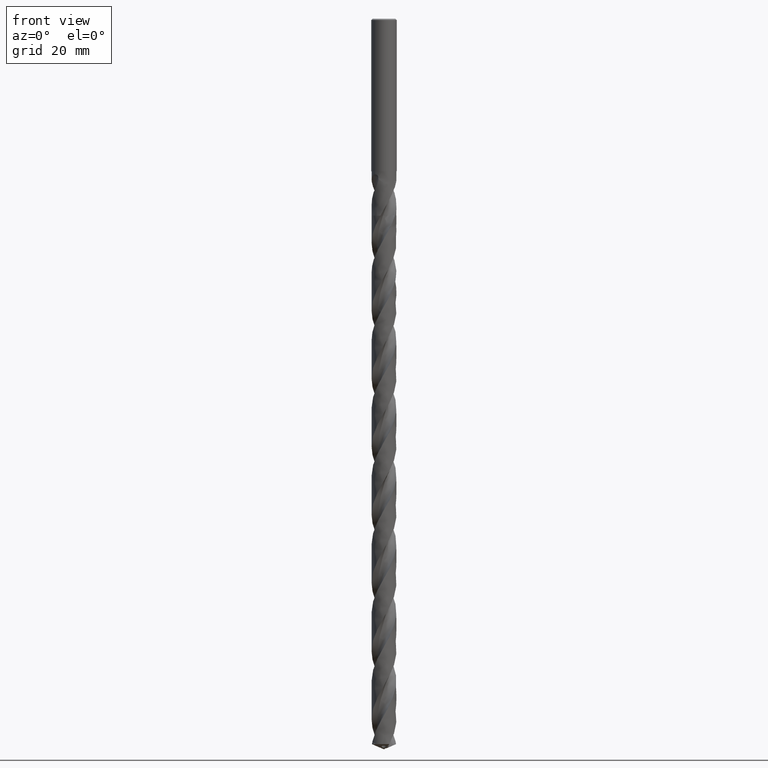
[diagram: clean part render]
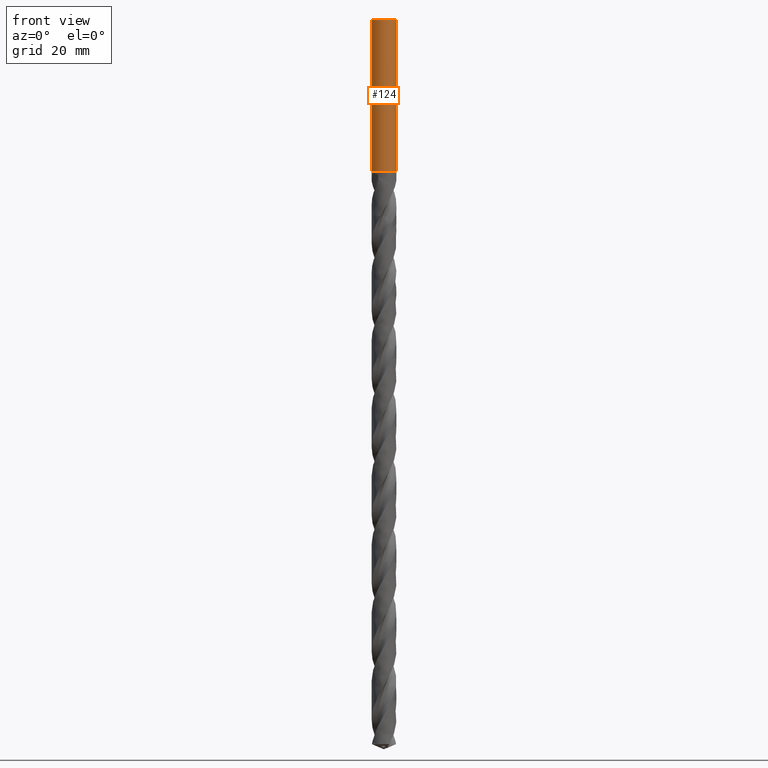
[diagram: same view with one face highlighted and labeled with its STEP entity id]
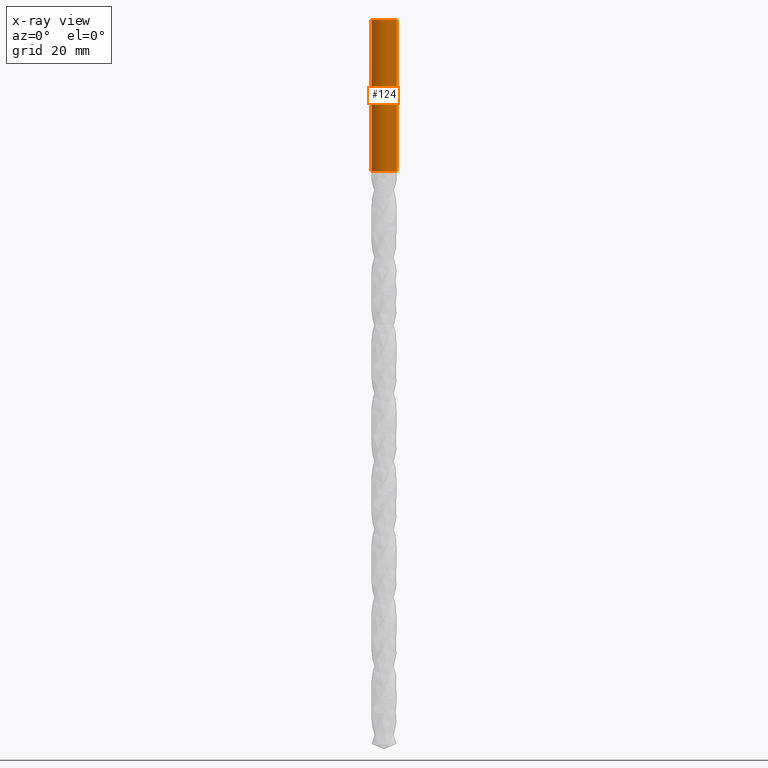
[diagram: x-ray of the same camera — body ghosted, the highlighted face saturated]
A machine part, front view. The second image highlights one B-rep face of the part: STEP entity #124.
The next image is the same camera in x-ray: the body ghosted, the highlighted face saturated — about 0% of this face is hidden behind the body in this view.
In plain terms, the highlighted face is a freeform B-spline surface patch.
Its self-contained STEP definition (entity closure, byte-faithful):
#73 = VERTEX_POINT('', #74);
#74 = CARTESIAN_POINT('', (-4., 2.69422295812417E-16, -0.399999999999999));
#90 = EDGE_CURVE('', #73, #73, #91, .T.);
#91 = CIRCLE('', #92, 4.);
#92 = AXIS2_PLACEMENT_3D('', #93, #94, #95);
#93 = CARTESIAN_POINT('', (1.49975978266185E-33, 2.44929359829467E-17, -0.399999999999999));
#94 = DIRECTION('', (3.74939945665464E-33, 6.12323399573677E-17, -1.));
#95 = DIRECTION('', (-1., 6.12323399573677E-17, 0.));
#124 = ADVANCED_FACE('', (#125), #144, .T.);
#125 = FACE_OUTER_BOUND('', #126, .T.);
#126 = EDGE_LOOP('', (#127, #135, #136, #137));
#127 = ORIENTED_EDGE('', *, *, #128, .T.);
#128 = EDGE_CURVE('', #129, #73, #131, .T.);
#129 = VERTEX_POINT('', #130);
#130 = CARTESIAN_POINT('', (-4., 3.18408167778312E-15, -48.));
#131 = LINE('', #132, #133);
#132 = CARTESIAN_POINT('', (-4., 3.18408167778312E-15, -48.));
#133 = VECTOR('', #134, 47.6);
#134 = DIRECTION('', (0., -2.9146593819707E-15, 47.6));
#135 = ORIENTED_EDGE('', *, *, #90, .T.);
#136 = ORIENTED_EDGE('', *, *, #128, .F.);
#137 = ORIENTED_EDGE('', *, *, #138, .F.);
#138 = EDGE_CURVE('', #129, #129, #139, .T.);
#139 = CIRCLE('', #140, 4.);
#140 = AXIS2_PLACEMENT_3D('', #141, #142, #143);
#141 = CARTESIAN_POINT('', (1.79971173919423E-31, 2.93915231795365E-15, -48.));
#142 = DIRECTION('', (3.74939945665464E-33, 6.12323399573677E-17, -1.));
#143 = DIRECTION('', (-1., 6.12323399573677E-17, 0.));
#144 = (
   BOUNDED_SURFACE ()
   B_SPLINE_SURFACE (1, 2, ((#145, #146, #147, #148, #149, #150, #151, #152, #153), (#154, #155, #156, #157, #158, #159, #160, #161, #162)), .UNSPECIFIED., .F., .T., .U.)
   B_SPLINE_SURFACE_WITH_KNOTS ((2, 2), (3, 2, 2, 2, 3), (0., 1.), (0., 6.28318530717959, 12.5663706143592, 18.8495559215388, 25.1327412287183), .UNSPECIFIED.)
   GEOMETRIC_REPRESENTATION_ITEM ()
   RATIONAL_B_SPLINE_SURFACE (((1., 0.707106781186548, 1., 0.707106781186548, 1., 0.707106781186548, 1., 0.707106781186548, 1.), (1., 0.707106781186548, 1., 0.707106781186548, 1., 0.707106781186548, 1., 0.707106781186548, 1.)))
   REPRESENTATION_ITEM ('')
   SURFACE ()
);
#145 = CARTESIAN_POINT('', (-4., 3.18408167778312E-15, -48.));
#146 = CARTESIAN_POINT('', (-4., 4., -48.));
#147 = CARTESIAN_POINT('', (1.4791141972894E-31, 4., -48.));
#148 = CARTESIAN_POINT('', (4., 4., -48.));
#149 = CARTESIAN_POINT('', (4., 3.18408167778312E-15, -48.));
#150 = CARTESIAN_POINT('', (4., -4., -48.));
#151 = CARTESIAN_POINT('', (4.89858719658941E-16, -4., -48.));
#152 = CARTESIAN_POINT('', (-4., -4., -48.));
#153 = CARTESIAN_POINT('', (-4., 3.18408167778312E-15, -48.));
#154 = CARTESIAN_POINT('', (-4., 2.69422295812417E-16, -0.399999999999999));
#155 = CARTESIAN_POINT('', (-4., 4., -0.399999999999998));
#156 = CARTESIAN_POINT('', (0., 4., -0.399999999999998));
#157 = CARTESIAN_POINT('', (4., 4., -0.399999999999998));
#158 = CARTESIAN_POINT('', (4., 2.69422295812417E-16, -0.399999999999999));
#159 = CARTESIAN_POINT('', (4., -4., -0.399999999999999));
#160 = CARTESIAN_POINT('', (4.89858719658941E-16, -4., -0.399999999999999));
#161 = CARTESIAN_POINT('', (-4., -4., -0.399999999999999));
#162 = CARTESIAN_POINT('', (-4., 2.69422295812417E-16, -0.399999999999999));